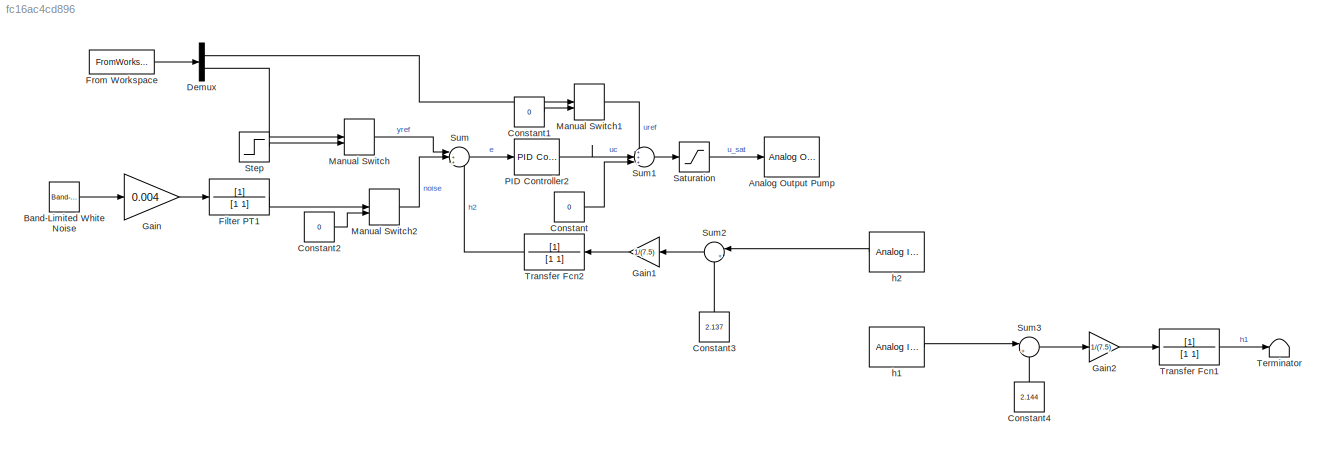
MODEL slx_fc16ac4cd896
KIND model
CONFIG AbsTol = auto
CONFIG EnableMultiTasking = off
CONFIG FixedStep = auto
CONFIG MaxStep = auto
CONFIG MinStep = auto
CONFIG RelTol = 1e-3
CONFIG SampleTimeConstraint = Unconstrained
CONFIG SolverName = VariableStepAuto
CONFIG StartTime = 0.0
CONFIG StopTime = inf
BLOCK [Reference] Analog Output Pump  REF=sldrtlib/Analog Output
  AttributesFormatString = National Instruments\nPCI-6221 [auto]
  SourceBlock = sldrtlib/Analog Output
  SourceType = Simulink Desktop Real-Time Analog Output
BLOCK [Reference] Band-Limited White Noise  REF=simulink/Sources/Band-Limited
White Noise
  SourceBlock = simulink/Sources/Band-Limited\nWhite Noise
  SourceType = Band-Limited White Noise.
BLOCK [Constant] Constant
  Value = 0
BLOCK [Constant] Constant1
  Value = 0
BLOCK [Constant] Constant2
  Value = 0
BLOCK [Constant] Constant3
  NameLocation = right
  Value = 2.137
BLOCK [Constant] Constant4
  NameLocation = right
  Value = 2.144
BLOCK [Demux] Demux
  Outputs = 2
BLOCK [TransferFcn] Filter PT1
  Denominator = [1 1]
BLOCK [FromWorkspace] From Workspace
  VariableName = simin
BLOCK [Gain] Gain
  Gain = 0.004
BLOCK [Gain] Gain1
  Gain = 1/(7.5)
  NameLocation = top
BLOCK [Gain] Gain2
  Gain = 1/(7.5)
BLOCK [ManualSwitch] Manual Switch
BLOCK [ManualSwitch] Manual Switch1
  CurrentSetting = 0
BLOCK [ManualSwitch] Manual Switch2
  CurrentSetting = 0
BLOCK [Reference] PID Controller2  REF=slpidlib/PID Controller
  LibrarySourceBlock = simulink/Continuous/PID Controller
  SourceBlock = slpidlib/PID Controller
  SourceType = PID 1dof
BLOCK [Saturate] Saturation
  LowerLimit = 0
  UpperLimit = u_max
BLOCK [Step] Step
  After = 0.08
  SampleTime = 0
BLOCK [Sum] Sum
  Inputs = |++-
BLOCK [Sum] Sum1
  Inputs = +++|
BLOCK [Sum] Sum2
  Inputs = |+-
  NameLocation = top
BLOCK [Sum] Sum3
  Inputs = |+-
BLOCK [Terminator] Terminator
BLOCK [TransferFcn] Transfer Fcn1
  Denominator = [1 1]
BLOCK [TransferFcn] Transfer Fcn2
  Denominator = [1 1]
  NameLocation = top
BLOCK [Reference] h1  REF=sldrtlib/Analog Input
  AttributesFormatString = National Instruments\nPCI-6221 [auto]
  SourceBlock = sldrtlib/Analog Input
  SourceType = Simulink Desktop Real-Time Analog Input
BLOCK [Reference] h2  REF=sldrtlib/Analog Input
  AttributesFormatString = National Instruments\nPCI-6221 [auto]
  NameLocation = top
  SourceBlock = sldrtlib/Analog Input
  SourceType = Simulink Desktop Real-Time Analog Input
LINE Band-Limited White Noise:1 -> Gain:1
LINE Constant1:1 -> Manual Switch1:2
LINE Constant2:1 -> Manual Switch2:2
LINE Constant3:1 -> Sum2:2
LINE Constant4:1 -> Sum3:2
LINE Constant:1 -> Sum1:3
LINE Demux:1 -> Manual Switch1:1
LINE Demux:2 -> Manual Switch:1
LINE Filter PT1:1 -> Manual Switch2:1
LINE From Workspace:1 -> Demux:1
LINE Gain1:1 -> Transfer Fcn2:1
LINE Gain2:1 -> Transfer Fcn1:1
LINE Gain:1 -> Filter PT1:1
LINE Manual Switch1:1 -> Sum1:1
LINE Manual Switch2:1 -> Sum:2
LINE Manual Switch:1 -> Sum:1
LINE PID Controller2:1 -> Sum1:2
LINE Saturation:1 -> Analog Output Pump:1
LINE Step:1 -> Manual Switch:2
LINE Sum1:1 -> Saturation:1
LINE Sum2:1 -> Gain1:1
LINE Sum3:1 -> Gain2:1
LINE Sum:1 -> PID Controller2:1
LINE Transfer Fcn1:1 -> Terminator:1
LINE Transfer Fcn2:1 -> Sum:3
LINE h1:1 -> Sum3:1
LINE h2:1 -> Sum2:1
